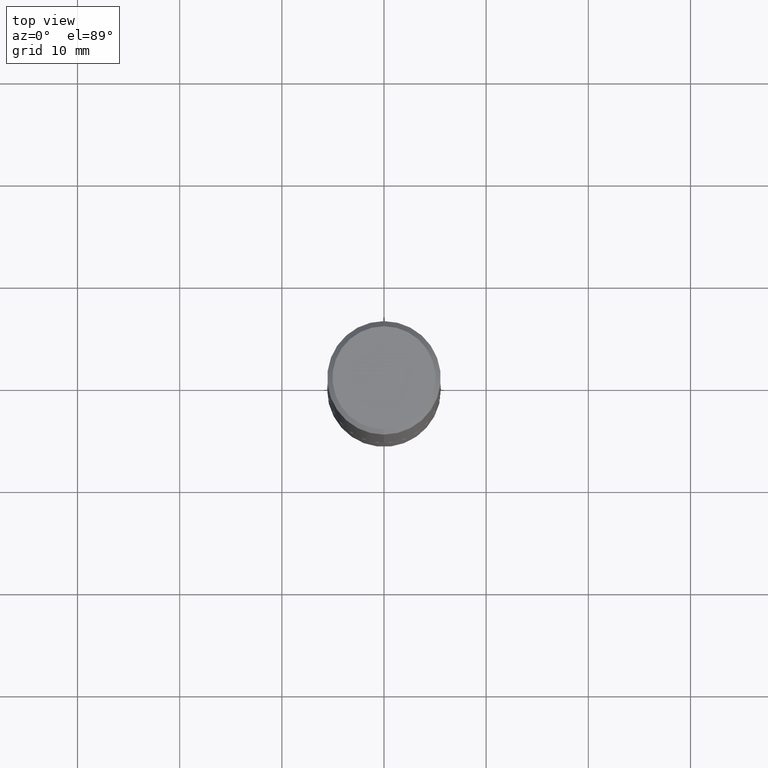
[diagram: clean part render]
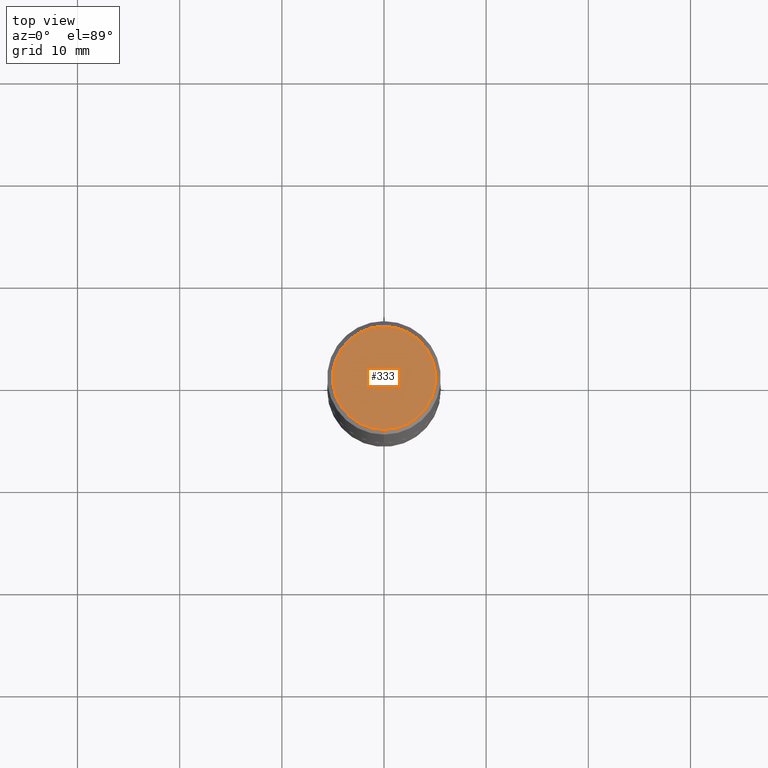
[diagram: same view with one face highlighted and labeled with its STEP entity id]
A machine part, top view. The second image highlights one B-rep face of the part: STEP entity #333.
In plain terms, the highlighted planar face has unit normal (0, -0, -1).
Its self-contained STEP definition (entity closure, byte-faithful):
#25 = AXIS2_PLACEMENT_3D ( 'NONE', #388, #290, #389 ) ;
#31 = EDGE_CURVE ( 'NONE', #40, #148, #116, .T. ) ;
#40 = VERTEX_POINT ( 'NONE', #90 ) ;
#60 = CIRCLE ( 'NONE', #95, 0.1987500000000002320 ) ;
#80 = ORIENTED_EDGE ( 'NONE', *, *, #31, .T. ) ;
#90 = CARTESIAN_POINT ( 'NONE',  ( 1.457693458967008925E-15, 0.1987500000000002320, -9.585796904813013388E-16 ) ) ;
#95 = AXIS2_PLACEMENT_3D ( 'NONE', #210, #184, #281 ) ;
#116 = CIRCLE ( 'NONE', #264, 0.1987500000000002320 ) ;
#130 = FACE_OUTER_BOUND ( 'NONE', #254, .T. ) ;
#148 = VERTEX_POINT ( 'NONE', #391 ) ;
#151 = CARTESIAN_POINT ( 'NONE',  ( 6.467688980457750273E-45, -9.237445401567455569E-31, -2.645236272391840412E-16 ) ) ;
#184 = DIRECTION ( 'NONE',  ( -2.445032622590504256E-29, 3.492105978576687648E-15, 1.000000000000000000 ) ) ;
#210 = CARTESIAN_POINT ( 'NONE',  ( 6.467688980457750273E-45, -9.237445401567455569E-31, -2.645236272391840412E-16 ) ) ;
#211 = EDGE_CURVE ( 'NONE', #148, #40, #60, .T. ) ;
#254 = EDGE_LOOP ( 'NONE', ( #80, #379 ) ) ;
#264 = AXIS2_PLACEMENT_3D ( 'NONE', #151, #339, #272 ) ;
#272 = DIRECTION ( 'NONE',  ( -6.982962677686265922E-15, -1.000000000000000000, 3.492105978576687648E-15 ) ) ;
#281 = DIRECTION ( 'NONE',  ( -6.982962677686265922E-15, -1.000000000000000000, 3.492105978576687648E-15 ) ) ;
#290 = DIRECTION ( 'NONE',  ( 2.445032622590503976E-29, -3.492105978576687648E-15, -1.000000000000000000 ) ) ;
#333 = ADVANCED_FACE ( 'NONE', ( #130 ), #358, .F. ) ;
#339 = DIRECTION ( 'NONE',  ( -2.445032622590504256E-29, 3.492105978576687648E-15, 1.000000000000000000 ) ) ;
#358 = PLANE ( 'NONE',  #25 ) ;
#379 = ORIENTED_EDGE ( 'NONE', *, *, #211, .T. ) ;
#388 = CARTESIAN_POINT ( 'NONE',  ( 1.387863832190147008E-15, 0.1987500000000002320, -8.263178768617095401E-16 ) ) ;
#389 = DIRECTION ( 'NONE',  ( 6.982962677686265922E-15, 1.000000000000000000, -3.492105978576687648E-15 ) ) ;
#391 = CARTESIAN_POINT ( 'NONE',  ( -1.432128957034807395E-15, -0.1987500000000002320, 4.295324360029333057E-16 ) ) ;